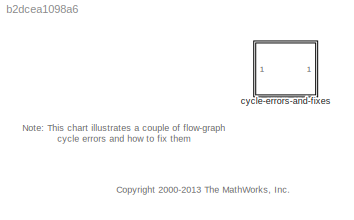
MODEL slx_b2dcea1098a6
KIND model
CONFIG AbsTol = auto
CONFIG EnableMultiTasking = on
CONFIG FixedStep = auto
CONFIG MaxStep = auto
CONFIG MinStep = auto
CONFIG RelTol = 1e-3
CONFIG SampleTimeConstraint = Unconstrained
CONFIG Solver = ode45
CONFIG SolverName = ode45
CONFIG StartTime = 0.0
CONFIG StopTime = 10.0
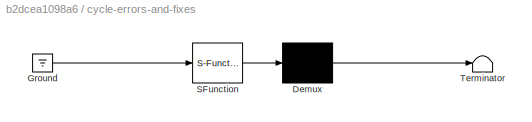
BLOCK [SubSystem] cycle-errors-and-fixes
  ErrorFcn = Stateflow.Translate.translate
  PermitHierarchicalResolution = ExplicitOnly
  Ports = []
  RequestExecContextInheritance = off
  SFBlockType = Chart
  TreatAsAtomicUnit = on
  Variant = off
BLOCK [Demux] cycle-errors-and-fixes/ Demux 
  Outputs = 1
  Ports = [1, 1]
BLOCK [Ground] cycle-errors-and-fixes/ Ground 
BLOCK [S-Function] cycle-errors-and-fixes/ SFunction 
  EnableBusSupport = off
  FunctionName = sf_sfun
  PortCounts = [1 1]
  Ports = [1, 1]
  SFcnIsStateOwnerBlock = off
  SFunctionDeploymentMode = off
  Tag = Stateflow S-Function sf_cycle_error_fix 1
BLOCK [Terminator] cycle-errors-and-fixes/ Terminator 
ANNOTATION (root): <copyright redacted>
ANNOTATION (root): Note: This chart illustrates a couple of flow-graph cycle errors and how to fix them
CHART cycle-errors-and-fixes states=5 transitions=17
  STATE_LABEL 'Note:\nThe following diagrams illustrate a couple of flow-graph cycle errors and  how to fix them'
  STATE_LABEL 'Fix1:\nWe incorporate the negation of condition c1\ninto the transition containing c2 such that the\nresulting diagram is functionally equivalent\nand has an unconditional path out of the loop\nto termination.'
  STATE_LABEL '[!c1 && c2]'
  STATE_LABEL '{action2;}'
  STATE_LABEL 'Error1:\nThe bottom junction in the loop\ndoes not have an unconditional\npath to termination'
  STATE_LABEL '[c2]'
  STATE_LABEL '{action1;}'
  STATE_LABEL '[c1]'
  STATE_LABEL 'Error2:\nThe top junction in the loop\ndoes not have an unconditional\npath to termination'
  STATE_LABEL '[c2]'
  STATE_LABEL '[c1]{action1;}'
  STATE_LABEL '{action2;}'
  STATE_LABEL 'Fix2:\nWe create an unconditional transition from\nthe top junction to the terminal junction.\nOnce again, this is functionally equivalent'
  STATE_LABEL '[c2]'
  STATE_LABEL '[c1]{action1;}'
  STATE_LABEL '{action2;}'
